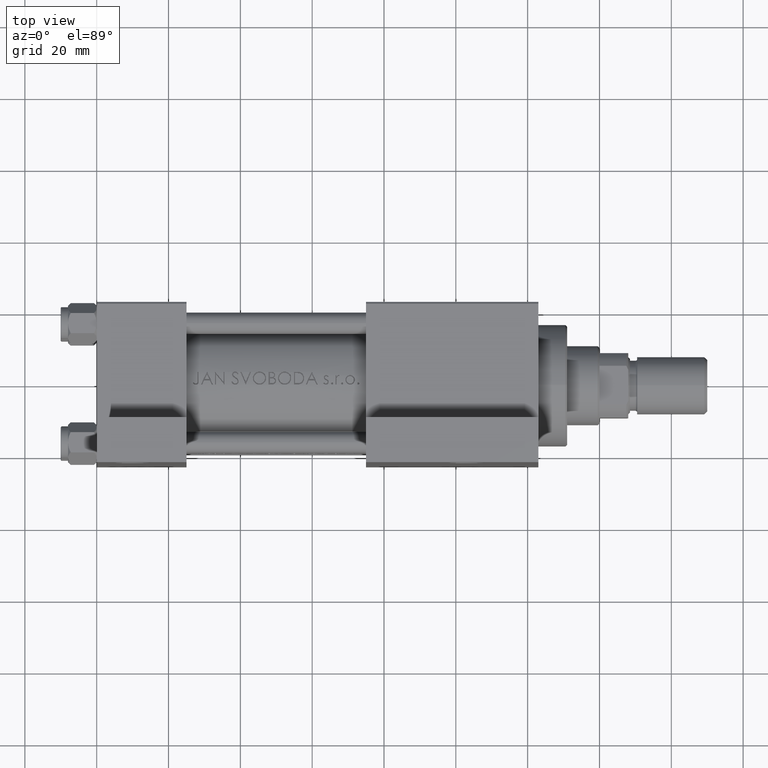
[diagram: clean part render]
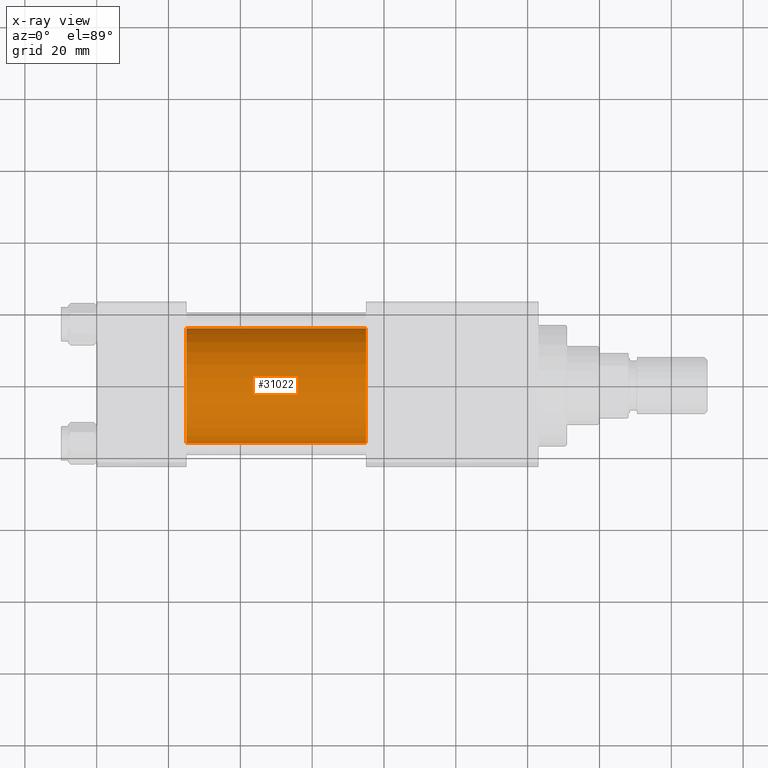
[diagram: x-ray — body ghosted, one internal face saturated and labeled with its STEP entity id]
A machine part, top view, then the same camera in x-ray: the body is ghosted and one INTERNAL B-rep face — a face not visible from any outside direction — is saturated and labeled: STEP entity #31022.
In plain terms, the highlighted cylindrical surface (partial cylindrical patch) has radius 16 mm, axis along (-1, -0, 0).
Its self-contained STEP definition (entity closure, byte-faithful):
#386 = LINE ( 'NONE', #11058, #44259 ) ;
#900 = AXIS2_PLACEMENT_3D ( 'NONE', #9678, #21339, #13326 ) ;
#2382 = CIRCLE ( 'NONE', #27222, 16.00000000000000000 ) ;
#4237 = EDGE_CURVE ( 'NONE', #47550, #40099, #386, .T. ) ;
#4244 = FACE_OUTER_BOUND ( 'NONE', #24731, .T. ) ;
#8509 = EDGE_CURVE ( 'NONE', #45737, #40099, #21841, .T. ) ;
#8560 = DIRECTION ( 'NONE',  ( 0.000000000000000000, 0.000000000000000000, -1.000000000000000000 ) ) ;
#9678 = CARTESIAN_POINT ( 'NONE',  ( 25.00000000000000000, 0.000000000000000000, -0.4999999999999970024 ) ) ;
#11058 = CARTESIAN_POINT ( 'NONE',  ( 75.00000000000001421, 1.959434878635765131E-15, -16.49999999999999645 ) ) ;
#11154 = ORIENTED_EDGE ( 'NONE', *, *, #8509, .F. ) ;
#11949 = CARTESIAN_POINT ( 'NONE',  ( 75.00000000000001421, 0.000000000000000000, -0.4999999999999970024 ) ) ;
#12102 = CARTESIAN_POINT ( 'NONE',  ( 25.00000000000000000, 0.000000000000000000, 15.50000000000000355 ) ) ;
#13081 = VERTEX_POINT ( 'NONE', #15150 ) ;
#13326 = DIRECTION ( 'NONE',  ( 0.000000000000000000, 0.000000000000000000, -1.000000000000000000 ) ) ;
#15150 = CARTESIAN_POINT ( 'NONE',  ( 75.00000000000001421, 0.000000000000000000, 15.50000000000000355 ) ) ;
#15181 = DIRECTION ( 'NONE',  ( -1.000000000000000000, -0.000000000000000000, -0.000000000000000000 ) ) ;
#19057 = CYLINDRICAL_SURFACE ( 'NONE', #23151, 16.00000000000000000 ) ;
#21339 = DIRECTION ( 'NONE',  ( 1.000000000000000000, 0.000000000000000000, 0.000000000000000000 ) ) ;
#21665 = ORIENTED_EDGE ( 'NONE', *, *, #37058, .T. ) ;
#21829 = ORIENTED_EDGE ( 'NONE', *, *, #27119, .F. ) ;
#21841 = CIRCLE ( 'NONE', #900, 16.00000000000000000 ) ;
#22954 = CARTESIAN_POINT ( 'NONE',  ( 75.00000000000001421, 1.959434878635765131E-15, -16.49999999999999645 ) ) ;
#23151 = AXIS2_PLACEMENT_3D ( 'NONE', #47998, #33899, #25649 ) ;
#24731 = EDGE_LOOP ( 'NONE', ( #21665, #38412, #11154, #21829 ) ) ;
#25649 = DIRECTION ( 'NONE',  ( 0.000000000000000000, 0.000000000000000000, 1.000000000000000000 ) ) ;
#27119 = EDGE_CURVE ( 'NONE', #13081, #45737, #41404, .T. ) ;
#27222 = AXIS2_PLACEMENT_3D ( 'NONE', #11949, #41373, #8560 ) ;
#31022 = ADVANCED_FACE ( 'NONE', ( #4244 ), #19057, .F. ) ;
#33899 = DIRECTION ( 'NONE',  ( -1.000000000000000000, -0.000000000000000000, -0.000000000000000000 ) ) ;
#37058 = EDGE_CURVE ( 'NONE', #13081, #47550, #2382, .T. ) ;
#38412 = ORIENTED_EDGE ( 'NONE', *, *, #4237, .T. ) ;
#40099 = VERTEX_POINT ( 'NONE', #44436 ) ;
#41373 = DIRECTION ( 'NONE',  ( 1.000000000000000000, 0.000000000000000000, 0.000000000000000000 ) ) ;
#41404 = LINE ( 'NONE', #45300, #43317 ) ;
#43317 = VECTOR ( 'NONE', #45531, 1000.000000000000000 ) ;
#44259 = VECTOR ( 'NONE', #15181, 1000.000000000000000 ) ;
#44436 = CARTESIAN_POINT ( 'NONE',  ( 25.00000000000000000, 1.959434878635765131E-15, -16.49999999999999645 ) ) ;
#45300 = CARTESIAN_POINT ( 'NONE',  ( 75.00000000000001421, 0.000000000000000000, 15.50000000000000355 ) ) ;
#45531 = DIRECTION ( 'NONE',  ( -1.000000000000000000, -0.000000000000000000, -0.000000000000000000 ) ) ;
#45737 = VERTEX_POINT ( 'NONE', #12102 ) ;
#47550 = VERTEX_POINT ( 'NONE', #22954 ) ;
#47998 = CARTESIAN_POINT ( 'NONE',  ( 75.00000000000001421, 0.000000000000000000, -0.4999999999999970024 ) ) ;